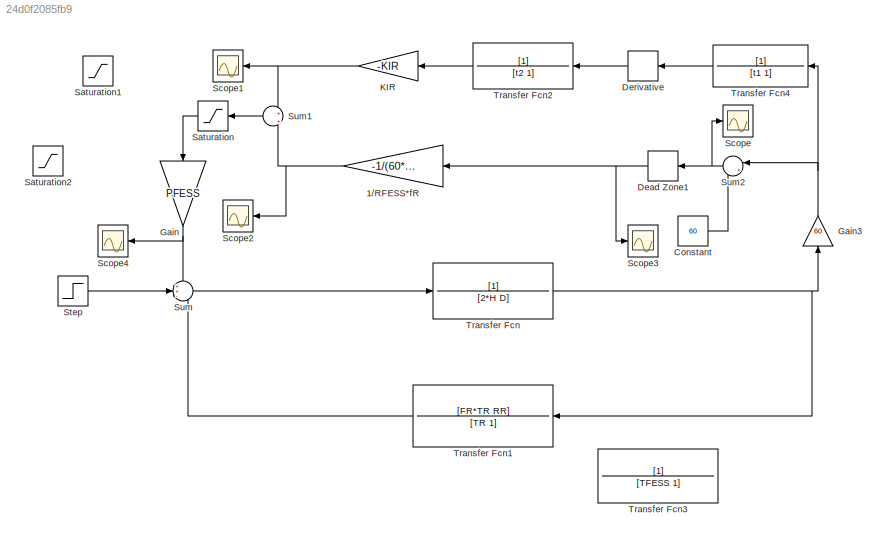
MODEL slx_24d0f2085fb9
KIND model
CONFIG AbsTol = auto
CONFIG EnableMultiTasking = off
CONFIG FixedStep = auto
CONFIG MaxStep = auto
CONFIG MinStep = auto
CONFIG RelTol = 1e-3
CONFIG SampleTimeConstraint = Unconstrained
CONFIG SolverName = VariableStepAuto
CONFIG StartTime = 0.0
CONFIG StopTime = 30
BLOCK [Gain] 1//RFESS*fR
  Gain = -1/(60*RFESS)
  NameLocation = top
BLOCK [Constant] Constant
  Value = 60
BLOCK [DeadZone] Dead Zone1
  LowerValue = 59.6
  NameLocation = top
  UpperValue = 60.4
BLOCK [Derivative] Derivative
  NameLocation = top
BLOCK [Gain] Gain
  Gain = PFESS
  NameLocation = left
BLOCK [Gain] Gain3
  Gain = 60
  NameLocation = right
BLOCK [Gain] KIR
  Gain = -KIR
  NameLocation = top
BLOCK [Saturate] Saturation
  LowerLimit = -1
  NameLocation = top
  UpperLimit = 1
BLOCK [Saturate] Saturation1
  LowerLimit = -1
  NameLocation = top
  UpperLimit = 1
BLOCK [Saturate] Saturation2
  LowerLimit = -1
  NameLocation = top
  UpperLimit = 1
BLOCK [Scope] Scope
  Floating = off
  NumInputPorts = 1
  ScopeSpecificationString = Simulink.scopes.TimeScopeBlockCfg('CurrentConfiguration', extmgr.ConfigurationSet(extmgr.Configuration('Core','General UI',true),extmgr.Configuration('Core','Source UI',true),extmgr.Configuration('Sources','WiredSimulink',true),extmgr.Configuration('Visuals','Time Domain',true,'SerializedDisplays',{struct('MinYLimReal','59.18196','MaxYLimReal','60.09089','YLabelReal','','MinYLimMag','59.18196','Ma...<+1487ch>
BLOCK [Scope] Scope1
  Floating = off
  NameLocation = top
  NumInputPorts = 1
  ScopeSpecificationString = Simulink.scopes.TimeScopeBlockCfg('CurrentConfiguration', extmgr.ConfigurationSet(extmgr.Configuration('Core','General UI',true),extmgr.Configuration('Core','Source UI',true),extmgr.Configuration('Sources','WiredSimulink',true,'DataLoggingVariableName','ScopeData3'),extmgr.Configuration('Visuals','Time Domain',true,'SerializedDisplays',{struct('MinYLimReal','-1.22932','MaxYLimReal','5.74212','YLab...<+1519ch>
BLOCK [Scope] Scope2
  Floating = off
  NameLocation = top
  NumInputPorts = 1
  ScopeSpecificationString = Simulink.scopes.TimeScopeBlockCfg('CurrentConfiguration', extmgr.ConfigurationSet(extmgr.Configuration('Core','General UI',true),extmgr.Configuration('Core','Source UI',true),extmgr.Configuration('Sources','WiredSimulink',true,'DataLoggingVariableName','ScopeData2'),extmgr.Configuration('Visuals','Time Domain',true,'SerializedDisplays',{struct('MinYLimReal','-0.10818','MaxYLimReal','0.97364','YLab...<+1526ch>
BLOCK [Scope] Scope3
  Floating = off
  NumInputPorts = 1
  ScopeSpecificationString = Simulink.scopes.TimeScopeBlockCfg('CurrentConfiguration', extmgr.ConfigurationSet(extmgr.Configuration('Core','General UI',true),extmgr.Configuration('Core','Source UI',true),extmgr.Configuration('Sources','WiredSimulink',true,'DataLoggingVariableName','ScopeData1'),extmgr.Configuration('Visuals','Time Domain',true,'SerializedDisplays',{struct('MinYLimReal','-1.00000','MaxYLimReal','1.00000','YLab...<+1557ch>
BLOCK [Scope] Scope4
  Floating = off
  NameLocation = top
  NumInputPorts = 1
  ScopeSpecificationString = Simulink.scopes.TimeScopeBlockCfg('CurrentConfiguration', extmgr.ConfigurationSet(extmgr.Configuration('Core','General UI',true),extmgr.Configuration('Core','Source UI',true),extmgr.Configuration('Sources','WiredSimulink',true,'DataLoggingVariableName','ScopeData2'),extmgr.Configuration('Visuals','Time Domain',true,'SerializedDisplays',{struct('MinYLimReal','-3.12308','MaxYLimReal','9.44701','YLab...<+1520ch>
BLOCK [Step] Step
  After = -7.55
  SampleTime = 0
  Time = 0
BLOCK [Sum] Sum
  Inputs = ++-
BLOCK [Sum] Sum1
  Inputs = +|+
  NameLocation = top
BLOCK [Sum] Sum2
  Inputs = |++
  NameLocation = top
BLOCK [TransferFcn] Transfer Fcn
  Denominator = [2*H D]
BLOCK [TransferFcn] Transfer Fcn1
  Denominator = [TR 1]
  NameLocation = top
  Numerator = [FR*TR RR]
BLOCK [TransferFcn] Transfer Fcn2
  Denominator = [t2 1]
  NameLocation = top
BLOCK [TransferFcn] Transfer Fcn3
  Denominator = [TFESS 1]
  NameLocation = top
BLOCK [TransferFcn] Transfer Fcn4
  Denominator = [t1 1]
  NameLocation = top
NET 1//RFESS*fR:1 -> Scope2:1, Sum1:2
LINE Constant:1 -> Sum2:2
NET Dead Zone1:1 -> 1//RFESS*fR:1, Scope3:1
LINE Derivative:1 -> Transfer Fcn2:1
NET Gain3:1 -> Sum2:1, Transfer Fcn4:1
NET Gain:1 -> Scope4:1, Sum:1
NET KIR:1 -> Scope1:1, Sum1:1
LINE Saturation:1 -> Gain:1
LINE Step:1 -> Sum:2
LINE Sum1:1 -> Saturation:1
NET Sum2:1 -> Dead Zone1:1, Scope:1
LINE Sum:1 -> Transfer Fcn:1
LINE Transfer Fcn1:1 -> Sum:3
LINE Transfer Fcn2:1 -> KIR:1
LINE Transfer Fcn4:1 -> Derivative:1
NET Transfer Fcn:1 -> Gain3:1, Transfer Fcn1:1
note: NET lines group one-source signal fan-out (src -> all destinations, sorted); 1:1 wires keep LINE
